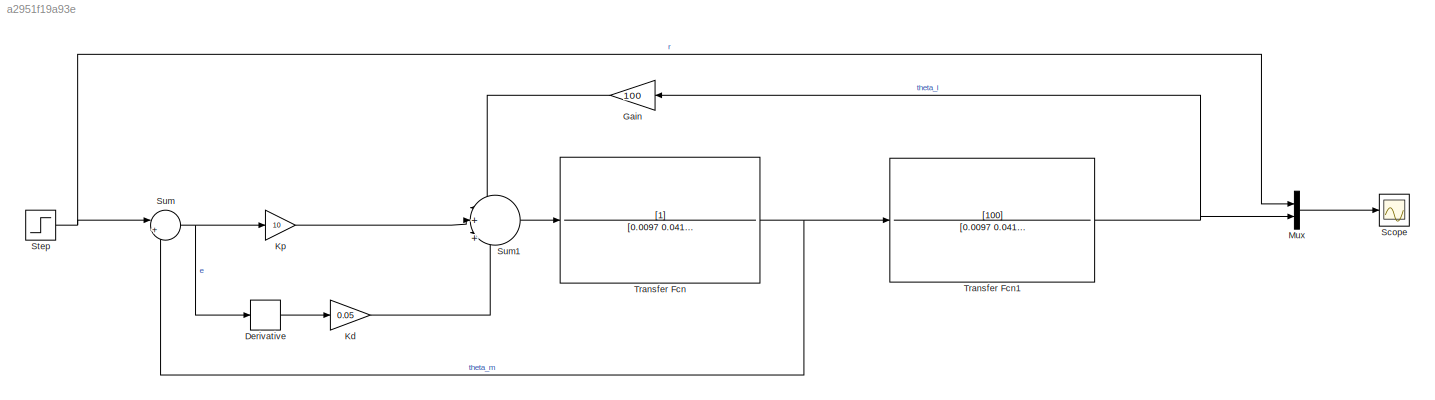
MODEL slx_a2951f19a93e
KIND model
CONFIG AbsTol = auto
CONFIG EnableMultiTasking = off
CONFIG FixedStep = auto
CONFIG MaxStep = auto
CONFIG MinStep = auto
CONFIG RelTol = 1e-3
CONFIG SampleTimeConstraint = Unconstrained
CONFIG SolverName = VariableStepAuto
CONFIG StartTime = 0.0
CONFIG StopTime = 10
BLOCK [Derivative] Derivative
BLOCK [Gain] Gain
  Gain = 100
BLOCK [Gain] Kd
  Gain = 0.05
BLOCK [Gain] Kp
  Gain = 10
BLOCK [Mux] Mux
  DisplayOption = bar
  Inputs = 2
BLOCK [Scope] Scope
  Floating = off
  NumInputPorts = 1
  ScopeSpecificationString = Simulink.scopes.TimeScopeBlockCfg('CurrentConfiguration', extmgr.ConfigurationSet(extmgr.Configuration('Core','General UI',true),extmgr.Configuration('Core','Source UI',true),extmgr.Configuration('Sources','WiredSimulink',true),extmgr.Configuration('Visuals','Time Domain',true,'SerializedDisplays',{struct('MinYLimReal','-0.20475','MaxYLimReal','1.84275','YLabelReal','','MinYLimMag','0.00000','MaxY...<+1420ch>
BLOCK [Step] Step
  SampleTime = 0
BLOCK [Sum] Sum
  Inputs = |+-
BLOCK [Sum] Sum1
  Inputs = |+|||+|||+
BLOCK [TransferFcn] Transfer Fcn
  Denominator = [0.0097 0.04169 100 ]
BLOCK [TransferFcn] Transfer Fcn1
  Denominator = [0.0097 0.04169 100]
  Numerator = [100]
LINE Derivative:1 -> Kd:1
LINE Gain:1 -> Sum1:1
LINE Kd:1 -> Sum1:3
LINE Kp:1 -> Sum1:2
LINE Mux:1 -> Scope:1
NET Step:1 -> Mux:1, Sum:1
LINE Sum1:1 -> Transfer Fcn:1
NET Sum:1 -> Derivative:1, Kp:1
NET Transfer Fcn1:1 -> Gain:1, Mux:2
NET Transfer Fcn:1 -> Sum:2, Transfer Fcn1:1
note: NET lines group one-source signal fan-out (src -> all destinations, sorted); 1:1 wires keep LINE
